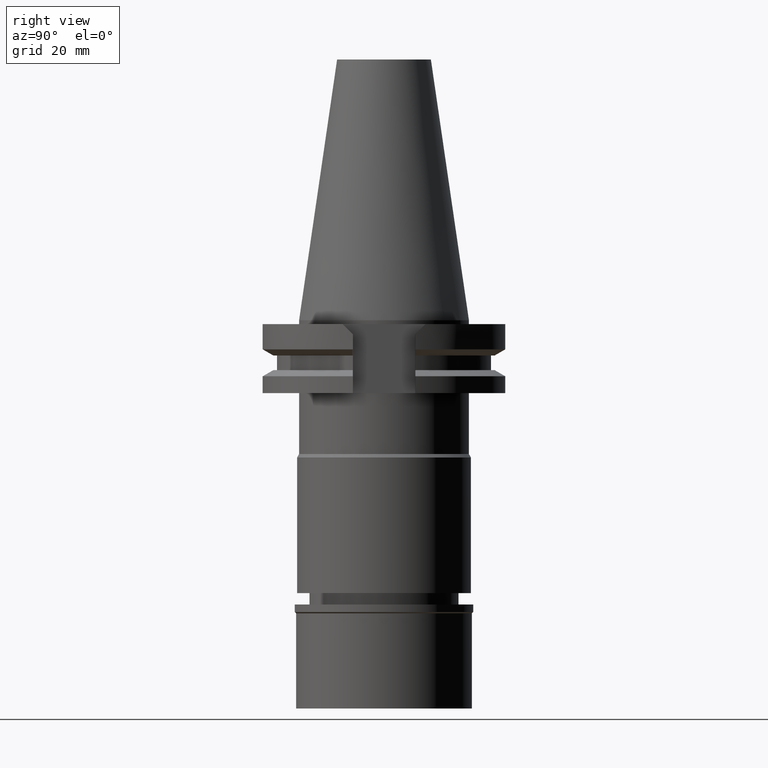
[diagram: clean part render]
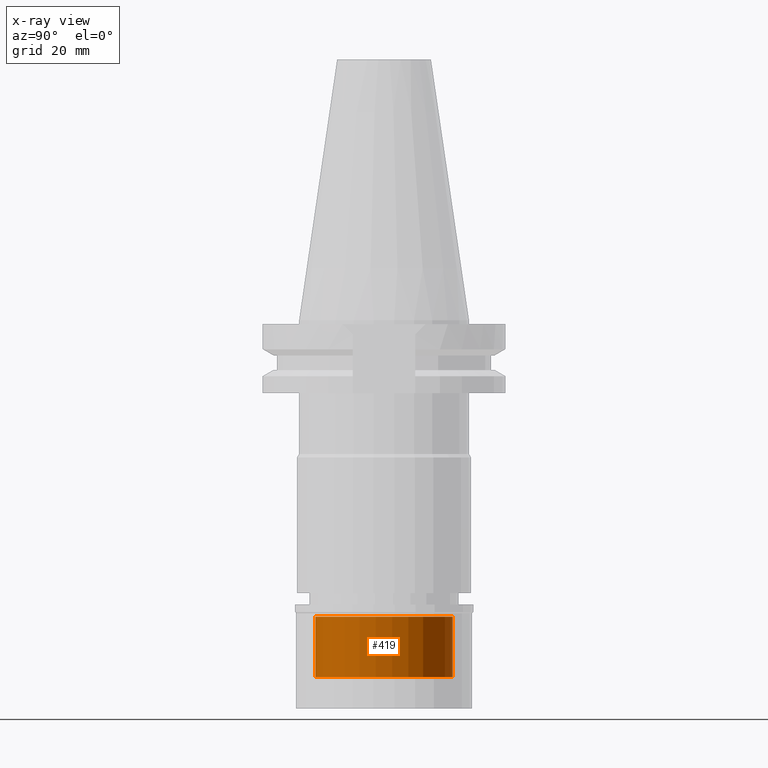
[diagram: x-ray — body ghosted, one internal face saturated and labeled with its STEP entity id]
A machine part, right view, then the same camera in x-ray: the body is ghosted and one INTERNAL B-rep face — a face not visible from any outside direction — is saturated and labeled: STEP entity #419.
In plain terms, the highlighted cylindrical surface (partial cylindrical patch) has radius 18 mm, axis along (0, 0, -1).
Its self-contained STEP definition (entity closure, byte-faithful):
#20 = AXIS2_PLACEMENT_3D ( 'NONE', #2925, #678, #1175 ) ;
#90 = DIRECTION ( 'NONE',  ( 0.0000000000000000000, 0.0000000000000000000, -1.000000000000000000 ) ) ;
#133 = AXIS2_PLACEMENT_3D ( 'NONE', #1336, #90, #1075 ) ;
#264 = ORIENTED_EDGE ( 'NONE', *, *, #2193, .T. ) ;
#363 = EDGE_CURVE ( 'NONE', #3095, #2702, #2680, .T. ) ;
#419 = ADVANCED_FACE ( 'NONE', ( #1420 ), #768, .F. ) ;
#500 = CARTESIAN_POINT ( 'NONE',  ( 0.0000000000000000000, 18.00000000000000000, -3.200000000000000178 ) ) ;
#678 = DIRECTION ( 'NONE',  ( 0.0000000000000000000, 0.0000000000000000000, -1.000000000000000000 ) ) ;
#757 = LINE ( 'NONE', #1761, #1296 ) ;
#768 = CYLINDRICAL_SURFACE ( 'NONE', #20, 18.00000000000000000 ) ;
#923 = CARTESIAN_POINT ( 'NONE',  ( 0.0000000000000000000, 0.0000000000000000000, -3.200000000000000178 ) ) ;
#1040 = ORIENTED_EDGE ( 'NONE', *, *, #1568, .T. ) ;
#1043 = DIRECTION ( 'NONE',  ( 0.0000000000000000000, 0.0000000000000000000, 1.000000000000000000 ) ) ;
#1075 = DIRECTION ( 'NONE',  ( 0.0000000000000000000, 1.000000000000000000, 0.0000000000000000000 ) ) ;
#1175 = DIRECTION ( 'NONE',  ( 0.0000000000000000000, -1.000000000000000000, 0.0000000000000000000 ) ) ;
#1232 = AXIS2_PLACEMENT_3D ( 'NONE', #923, #1931, #1693 ) ;
#1239 = CARTESIAN_POINT ( 'NONE',  ( 0.0000000000000000000, 18.00000000000000000, -19.00000000000000000 ) ) ;
#1296 = VECTOR ( 'NONE', #1043, 1000.000000000000000 ) ;
#1312 = VECTOR ( 'NONE', #3212, 1000.000000000000000 ) ;
#1336 = CARTESIAN_POINT ( 'NONE',  ( 0.0000000000000000000, 0.0000000000000000000, -19.00000000000000000 ) ) ;
#1420 = FACE_OUTER_BOUND ( 'NONE', #3091, .T. ) ;
#1489 = LINE ( 'NONE', #2473, #1312 ) ;
#1568 = EDGE_CURVE ( 'NONE', #2843, #2133, #2246, .T. ) ;
#1693 = DIRECTION ( 'NONE',  ( 0.0000000000000000000, -1.000000000000000000, 0.0000000000000000000 ) ) ;
#1761 = CARTESIAN_POINT ( 'NONE',  ( 0.0000000000000000000, -18.00000000000000000, -19.00000000000000000 ) ) ;
#1882 = CARTESIAN_POINT ( 'NONE',  ( 0.0000000000000000000, -18.00000000000000000, -3.200000000000000178 ) ) ;
#1931 = DIRECTION ( 'NONE',  ( 0.0000000000000000000, 0.0000000000000000000, 1.000000000000000000 ) ) ;
#1938 = ORIENTED_EDGE ( 'NONE', *, *, #3181, .F. ) ;
#2133 = VERTEX_POINT ( 'NONE', #500 ) ;
#2193 = EDGE_CURVE ( 'NONE', #2702, #2843, #757, .T. ) ;
#2246 = CIRCLE ( 'NONE', #1232, 18.00000000000000000 ) ;
#2473 = CARTESIAN_POINT ( 'NONE',  ( 0.0000000000000000000, 18.00000000000000000, -19.00000000000000000 ) ) ;
#2680 = CIRCLE ( 'NONE', #133, 18.00000000000000000 ) ;
#2702 = VERTEX_POINT ( 'NONE', #2972 ) ;
#2843 = VERTEX_POINT ( 'NONE', #1882 ) ;
#2925 = CARTESIAN_POINT ( 'NONE',  ( 0.0000000000000000000, 0.0000000000000000000, 0.0000000000000000000 ) ) ;
#2972 = CARTESIAN_POINT ( 'NONE',  ( 0.0000000000000000000, -18.00000000000000000, -19.00000000000000000 ) ) ;
#3091 = EDGE_LOOP ( 'NONE', ( #3135, #264, #1040, #1938 ) ) ;
#3095 = VERTEX_POINT ( 'NONE', #1239 ) ;
#3135 = ORIENTED_EDGE ( 'NONE', *, *, #363, .T. ) ;
#3181 = EDGE_CURVE ( 'NONE', #3095, #2133, #1489, .T. ) ;
#3212 = DIRECTION ( 'NONE',  ( 0.0000000000000000000, 0.0000000000000000000, 1.000000000000000000 ) ) ;